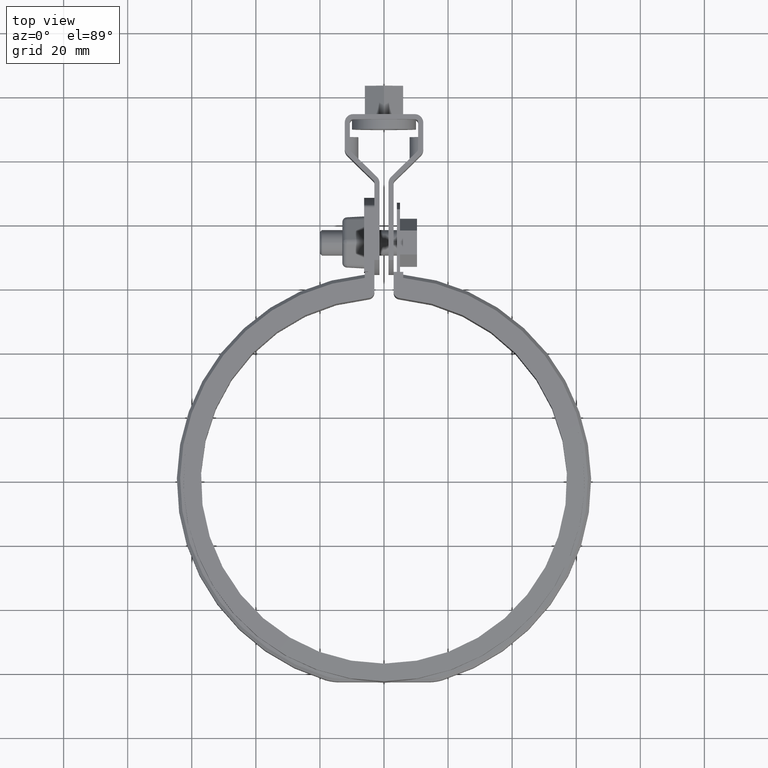
[diagram: clean part render]
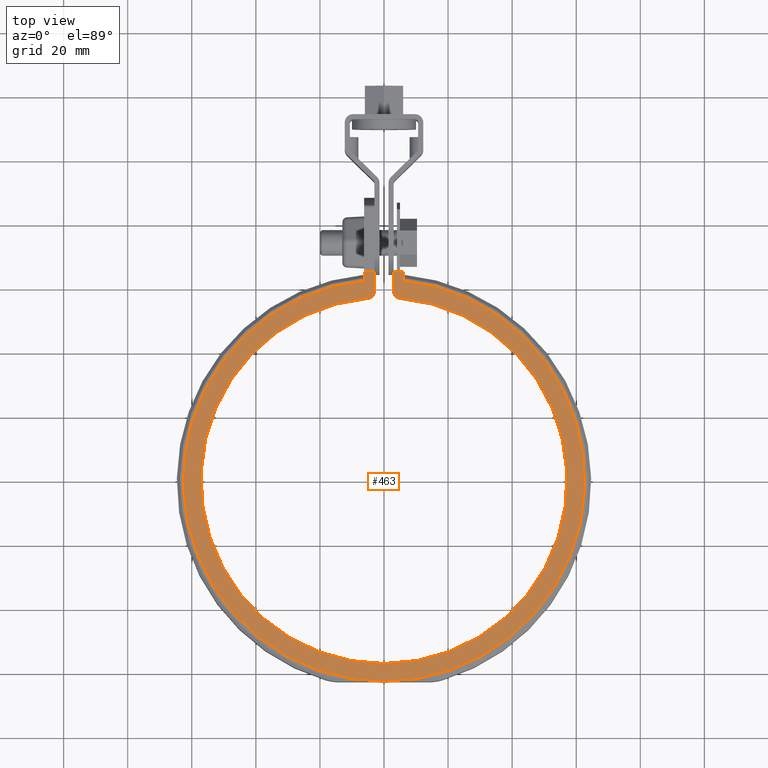
[diagram: same view with one face highlighted and labeled with its STEP entity id]
A machine part, top view. The second image highlights one B-rep face of the part: STEP entity #463.
In plain terms, the highlighted planar face has unit normal (0, 0, -1).
Its self-contained STEP definition (entity closure, byte-faithful):
#463 = ADVANCED_FACE( '', ( #901 ), #902, .F. );
#901 = FACE_OUTER_BOUND( '', #2158, .T. );
#902 = PLANE( '', #2159 );
#2158 = EDGE_LOOP( '', ( #4127, #4128, #4129, #4130, #4131, #4132, #4133, #4134, #4135, #4136 ) );
#2159 = AXIS2_PLACEMENT_3D( '', #4137, #4138, #4139 );
#4127 = ORIENTED_EDGE( '', *, *, #6330, .T. );
#4128 = ORIENTED_EDGE( '', *, *, #6332, .T. );
#4129 = ORIENTED_EDGE( '', *, *, #6231, .T. );
#4130 = ORIENTED_EDGE( '', *, *, #6326, .T. );
#4131 = ORIENTED_EDGE( '', *, *, #6333, .T. );
#4132 = ORIENTED_EDGE( '', *, *, #6334, .T. );
#4133 = ORIENTED_EDGE( '', *, *, #6314, .T. );
#4134 = ORIENTED_EDGE( '', *, *, #6154, .T. );
#4135 = ORIENTED_EDGE( '', *, *, #6185, .T. );
#4136 = ORIENTED_EDGE( '', *, *, #6240, .T. );
#4137 = CARTESIAN_POINT( '', ( 5.23468564512154, 60.8144995511336, 14.0000000000000 ) );
#4138 = DIRECTION( '', ( 0.000000000000000, 0.000000000000000, -1.00000000000000 ) );
#4139 = DIRECTION( '', ( 0.000000000000000, -1.00000000000000, 0.000000000000000 ) );
#6154 = EDGE_CURVE( '', #7145, #7146, #7147, .F. );
#6185 = EDGE_CURVE( '', #7146, #7203, #7204, .T. );
#6231 = EDGE_CURVE( '', #7287, #7285, #7288, .F. );
#6240 = EDGE_CURVE( '', #7203, #7303, #7304, .F. );
#6314 = EDGE_CURVE( '', #7420, #7145, #7421, .F. );
#6326 = EDGE_CURVE( '', #7285, #7436, #7438, .F. );
#6330 = EDGE_CURVE( '', #7303, #7443, #7444, .F. );
#6332 = EDGE_CURVE( '', #7443, #7287, #7446, .F. );
#6333 = EDGE_CURVE( '', #7436, #7447, #7448, .F. );
#6334 = EDGE_CURVE( '', #7447, #7420, #7449, .F. );
#7145 = VERTEX_POINT( '', #9773 );
#7146 = VERTEX_POINT( '', #9774 );
#7147 = CIRCLE( '', #9775, 2.00000000000000 );
#7203 = VERTEX_POINT( '', #9960 );
#7204 = CIRCLE( '', #9961, 57.1500000000000 );
#7285 = VERTEX_POINT( '', #10481 );
#7287 = VERTEX_POINT( '', #10484 );
#7288 = LINE( '', #10485, #10486 );
#7303 = VERTEX_POINT( '', #10523 );
#7304 = CIRCLE( '', #10524, 2.00000000000000 );
#7420 = VERTEX_POINT( '', #10790 );
#7421 = LINE( '', #10791, #10792 );
#7436 = VERTEX_POINT( '', #10813 );
#7438 = CIRCLE( '', #10816, 62.6500000000000 );
#7443 = VERTEX_POINT( '', #10822 );
#7444 = LINE( '', #10823, #10824 );
#7446 = LINE( '', #10827, #10828 );
#7447 = VERTEX_POINT( '', #10829 );
#7448 = LINE( '', #10830, #10831 );
#7449 = LINE( '', #10832, #10833 );
#9773 = CARTESIAN_POINT( '', ( 3.00000000000000, 58.9382940031352, 14.0000000000000 ) );
#9774 = CARTESIAN_POINT( '', ( 4.83093829247673, 56.9454522785998, 14.0000000000000 ) );
#9775 = AXIS2_PLACEMENT_3D( '', #12471, #12472, #12473 );
#9960 = CARTESIAN_POINT( '', ( -4.83093829247669, 56.9454522785998, 14.0000000000000 ) );
#9961 = AXIS2_PLACEMENT_3D( '', #12513, #12514, #12515 );
#10481 = CARTESIAN_POINT( '', ( -6.00000000000000, 62.3620277091757, 14.0000000000000 ) );
#10484 = CARTESIAN_POINT( '', ( -6.00000000000000, 65.1500000000000, 14.0000000000000 ) );
#10485 = CARTESIAN_POINT( '', ( -6.00000000000000, 60.8144995511336, 14.0000000000000 ) );
#10486 = VECTOR( '', #12560, 1000.00000000000 );
#10523 = CARTESIAN_POINT( '', ( -2.99999999999995, 58.9382940031352, 14.0000000000000 ) );
#10524 = AXIS2_PLACEMENT_3D( '', #12571, #12572, #12573 );
#10790 = CARTESIAN_POINT( '', ( 3.00000000000000, 65.1500000000000, 14.0000000000000 ) );
#10791 = CARTESIAN_POINT( '', ( 3.00000000000000, 60.8144995511336, 14.0000000000000 ) );
#10792 = VECTOR( '', #12678, 1000.00000000000 );
#10813 = CARTESIAN_POINT( '', ( 6.00000000000001, 62.3620277091757, 14.0000000000000 ) );
#10816 = AXIS2_PLACEMENT_3D( '', #12698, #12699, #12700 );
#10822 = CARTESIAN_POINT( '', ( -2.99999999999995, 65.1500000000000, 14.0000000000000 ) );
#10823 = CARTESIAN_POINT( '', ( -2.99999999999995, 60.8144995511336, 14.0000000000000 ) );
#10824 = VECTOR( '', #12708, 1000.00000000000 );
#10827 = CARTESIAN_POINT( '', ( 5.23468564512154, 65.1500000000000, 14.0000000000000 ) );
#10828 = VECTOR( '', #12710, 1000.00000000000 );
#10829 = CARTESIAN_POINT( '', ( 6.00000000000001, 65.1500000000000, 14.0000000000000 ) );
#10830 = CARTESIAN_POINT( '', ( 6.00000000000001, 60.8144995511336, 14.0000000000000 ) );
#10831 = VECTOR( '', #12711, 1000.00000000000 );
#10832 = CARTESIAN_POINT( '', ( 5.23468564512154, 65.1500000000000, 14.0000000000000 ) );
#10833 = VECTOR( '', #12712, 1000.00000000000 );
#12471 = CARTESIAN_POINT( '', ( 5.00000000000000, 58.9382940031352, 14.0000000000000 ) );
#12472 = DIRECTION( '', ( 0.000000000000000, 0.000000000000000, -1.00000000000000 ) );
#12473 = DIRECTION( '', ( -1.00000000000000, 0.000000000000000, 0.000000000000000 ) );
#12513 = CARTESIAN_POINT( '', ( 3.46944695195361E-015, 3.46944695195361E-014, 14.0000000000000 ) );
#12514 = DIRECTION( '', ( 0.000000000000000, 0.000000000000000, -1.00000000000000 ) );
#12515 = DIRECTION( '', ( -1.00000000000000, 0.000000000000000, 0.000000000000000 ) );
#12560 = DIRECTION( '', ( 6.93889390390723E-017, 1.00000000000000, 0.000000000000000 ) );
#12571 = CARTESIAN_POINT( '', ( -4.99999999999995, 58.9382940031352, 14.0000000000000 ) );
#12572 = DIRECTION( '', ( 0.000000000000000, 0.000000000000000, -1.00000000000000 ) );
#12573 = DIRECTION( '', ( -1.00000000000000, 0.000000000000000, 0.000000000000000 ) );
#12678 = DIRECTION( '', ( 4.16333634234434E-017, 1.00000000000000, 0.000000000000000 ) );
#12698 = CARTESIAN_POINT( '', ( 8.67361737988404E-016, 0.000000000000000, 14.0000000000000 ) );
#12699 = DIRECTION( '', ( 0.000000000000000, 0.000000000000000, -1.00000000000000 ) );
#12700 = DIRECTION( '', ( -1.00000000000000, 0.000000000000000, 0.000000000000000 ) );
#12708 = DIRECTION( '', ( -4.16333634234434E-017, -1.00000000000000, 0.000000000000000 ) );
#12710 = DIRECTION( '', ( 1.00000000000000, 0.000000000000000, 0.000000000000000 ) );
#12711 = DIRECTION( '', ( -6.93889390390723E-017, -1.00000000000000, 0.000000000000000 ) );
#12712 = DIRECTION( '', ( 1.00000000000000, 0.000000000000000, 0.000000000000000 ) );